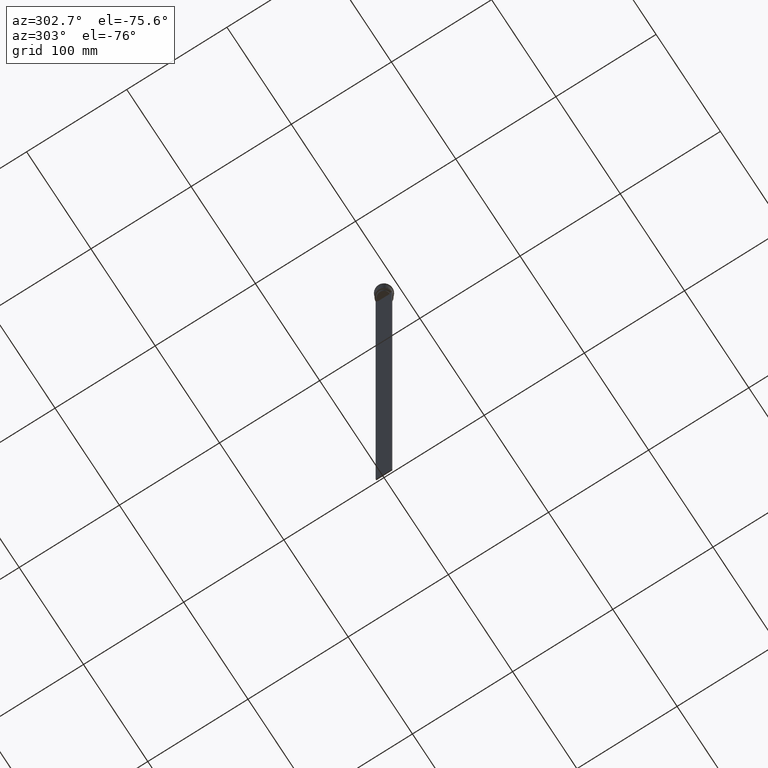
[diagram: clean part render]
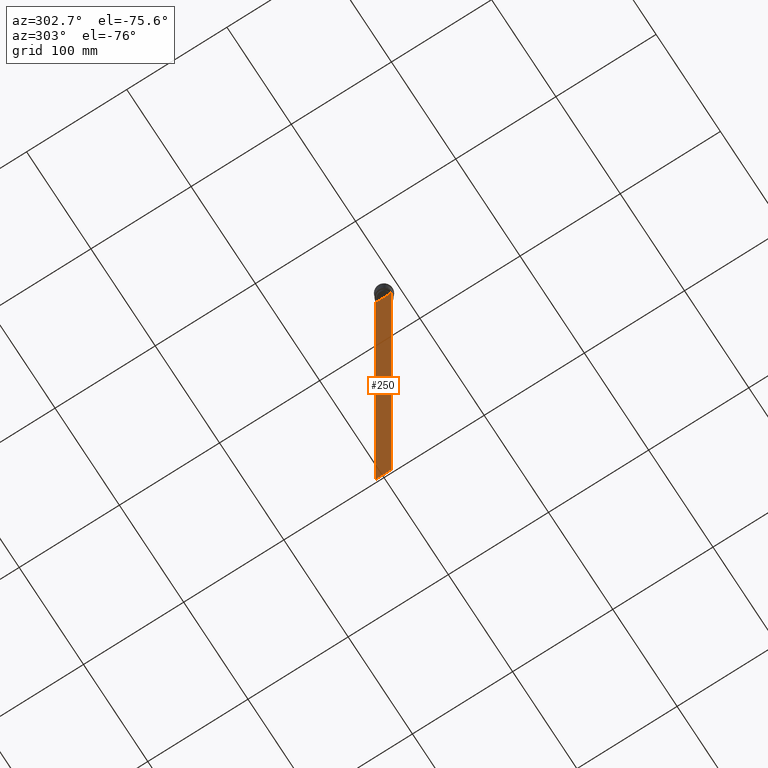
[diagram: same view with one face highlighted and labeled with its STEP entity id]
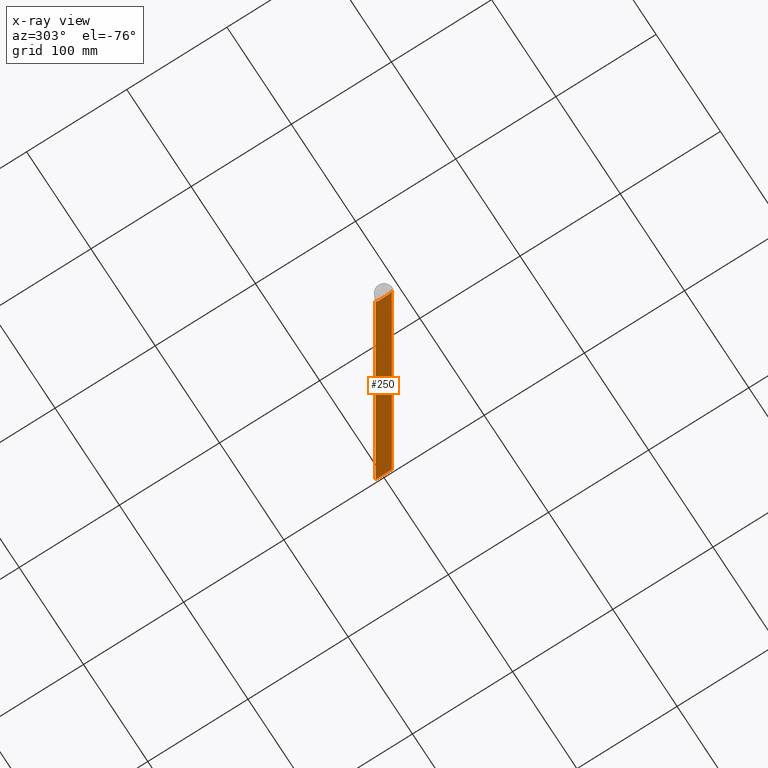
[diagram: x-ray of the same camera — body ghosted, the highlighted face saturated]
A machine part, auxiliary view. The second image highlights one B-rep face of the part: STEP entity #250.
The next image is the same camera in x-ray: the body ghosted, the highlighted face saturated — about 0% of this face is hidden behind the body in this view.
In plain terms, the highlighted planar face has unit normal (-1, 0, 0).
Its self-contained STEP definition (entity closure, byte-faithful):
#2 = LINE ( 'NONE', #1508, #50 ) ;
#4 = CARTESIAN_POINT ( 'NONE',  ( -0.4999999999999998890, -6.380438856379708312, 0.000000000000000000 ) ) ;
#12 = CARTESIAN_POINT ( 'NONE',  ( -0.4999999999999998890, 6.380438856379708312, -14.50000000000000000 ) ) ;
#22 = ORIENTED_EDGE ( 'NONE', *, *, #1027, .F. ) ;
#32 = VERTEX_POINT ( 'NONE', #2423 ) ;
#36 = CARTESIAN_POINT ( 'NONE',  ( -0.4999999999999998890, 6.881860213634098500, -14.00000000000000178 ) ) ;
#44 = ORIENTED_EDGE ( 'NONE', *, *, #52, .F. ) ;
#50 = VECTOR ( 'NONE', #1329, 1000.000000000000000 ) ;
#52 = EDGE_CURVE ( 'NONE', #1179, #1962, #2426, .T. ) ;
#78 = VECTOR ( 'NONE', #1378, 1000.000000000000000 ) ;
#98 = CARTESIAN_POINT ( 'NONE',  ( -0.4999999999999998890, -6.380438856379708312, -14.50000000000000000 ) ) ;
#106 = CARTESIAN_POINT ( 'NONE',  ( -0.4999999999999998890, -8.000000000000003553, -14.00000000000000178 ) ) ;
#160 = CARTESIAN_POINT ( 'NONE',  ( -0.4999999999999998890, 7.884161337770806632, -14.00000000000000178 ) ) ;
#201 = CARTESIAN_POINT ( 'NONE',  ( -0.4999999999999998890, -8.000000000000003553, 2.031219541881394530 ) ) ;
#250 = ADVANCED_FACE ( 'NONE', ( #916 ), #1876, .T. ) ;
#251 = CARTESIAN_POINT ( 'NONE',  ( -0.4999999999999998890, 7.999999999999996447, -14.00000000000000178 ) ) ;
#284 = CARTESIAN_POINT ( 'NONE',  ( -0.4999999999999998890, 6.380438856379708312, -14.50000000000000000 ) ) ;
#334 = DIRECTION ( 'NONE',  ( 0.000000000000000000, -1.000000000000000000, 0.000000000000000000 ) ) ;
#362 = B_SPLINE_CURVE_WITH_KNOTS ( 'NONE', 3,
 ( #98, #2217, #2393, #1650 ),
 .UNSPECIFIED., .F., .F.,
 ( 4, 4 ),
 ( 0.02996184199614749730, 0.03067452609193703841 ),
 .UNSPECIFIED. ) ;
#461 = ORIENTED_EDGE ( 'NONE', *, *, #2455, .F. ) ;
#469 = EDGE_CURVE ( 'NONE', #482, #2208, #1801, .T. ) ;
#482 = VERTEX_POINT ( 'NONE', #251 ) ;
#526 = DIRECTION ( 'NONE',  ( -1.000000000000000000, 0.000000000000000000, 0.000000000000000000 ) ) ;
#528 = LINE ( 'NONE', #1255, #569 ) ;
#543 = CARTESIAN_POINT ( 'NONE',  ( -0.4999999999999998890, -8.000000000000003553, -614.0000000000000000 ) ) ;
#567 = CARTESIAN_POINT ( 'NONE',  ( -0.4999999999999998890, 6.547597841304911626, -14.33335192459222718 ) ) ;
#569 = VECTOR ( 'NONE', #2464, 1000.000000000000000 ) ;
#605 = VECTOR ( 'NONE', #2229, 1000.000000000000000 ) ;
#687 = EDGE_CURVE ( 'NONE', #1138, #1179, #888, .T. ) ;
#703 = VERTEX_POINT ( 'NONE', #1653 ) ;
#719 = CARTESIAN_POINT ( 'NONE',  ( -0.4999999999999998890, -8.000000000000003553, -14.00000000000000178 ) ) ;
#724 = EDGE_CURVE ( 'NONE', #947, #1483, #1498, .T. ) ;
#760 = CARTESIAN_POINT ( 'NONE',  ( -0.4999999999999998890, 6.881860213634098500, -14.00000000000000178 ) ) ;
#763 = EDGE_CURVE ( 'NONE', #1962, #32, #2, .T. ) ;
#784 = CARTESIAN_POINT ( 'NONE',  ( -0.4999999999999998890, 6.399999999999999467, -17.00000000000000000 ) ) ;
#786 = VERTEX_POINT ( 'NONE', #2257 ) ;
#814 = ORIENTED_EDGE ( 'NONE', *, *, #1215, .F. ) ;
#832 = ORIENTED_EDGE ( 'NONE', *, *, #687, .F. ) ;
#888 = LINE ( 'NONE', #2019, #605 ) ;
#908 = ORIENTED_EDGE ( 'NONE', *, *, #1394, .F. ) ;
#916 = FACE_OUTER_BOUND ( 'NONE', #2430, .T. ) ;
#947 = VERTEX_POINT ( 'NONE', #1799 ) ;
#963 = AXIS2_PLACEMENT_3D ( 'NONE', #1501, #526, #1643 ) ;
#965 = ORIENTED_EDGE ( 'NONE', *, *, #763, .F. ) ;
#996 = DIRECTION ( 'NONE',  ( 0.000000000000000000, -1.000000000000000000, 0.000000000000000000 ) ) ;
#1010 = VECTOR ( 'NONE', #2029, 1000.000000000000000 ) ;
#1014 = DIRECTION ( 'NONE',  ( 0.000000000000000000, 0.000000000000000000, -1.000000000000000000 ) ) ;
#1018 = ORIENTED_EDGE ( 'NONE', *, *, #2351, .F. ) ;
#1027 = EDGE_CURVE ( 'NONE', #2271, #1565, #362, .T. ) ;
#1047 = CARTESIAN_POINT ( 'NONE',  ( -0.4999999999999998890, 7.999999999999996447, -614.0000000000000000 ) ) ;
#1138 = VERTEX_POINT ( 'NONE', #160 ) ;
#1179 = VERTEX_POINT ( 'NONE', #36 ) ;
#1203 = ORIENTED_EDGE ( 'NONE', *, *, #2299, .F. ) ;
#1215 = EDGE_CURVE ( 'NONE', #32, #703, #1796, .T. ) ;
#1255 = CARTESIAN_POINT ( 'NONE',  ( -0.4999999999999998890, -8.000000000000003553, -14.00000000000000178 ) ) ;
#1265 = CARTESIAN_POINT ( 'NONE',  ( -0.4999999999999998890, -6.380438856379708312, -14.50000000000000000 ) ) ;
#1313 = CARTESIAN_POINT ( 'NONE',  ( -0.4999999999999998890, -6.881860213634098500, -14.00000000000000178 ) ) ;
#1329 = DIRECTION ( 'NONE',  ( 0.000000000000000000, 0.000000000000000000, -1.000000000000000000 ) ) ;
#1332 = LINE ( 'NONE', #4, #1010 ) ;
#1378 = DIRECTION ( 'NONE',  ( 0.000000000000000000, 1.000000000000000000, 0.000000000000000000 ) ) ;
#1394 = EDGE_CURVE ( 'NONE', #482, #1138, #1659, .T. ) ;
#1483 = VERTEX_POINT ( 'NONE', #543 ) ;
#1498 = LINE ( 'NONE', #201, #1741 ) ;
#1501 = CARTESIAN_POINT ( 'NONE',  ( -0.4999999999999998890, -8.000000000000003553, 2.031219541881394530 ) ) ;
#1508 = CARTESIAN_POINT ( 'NONE',  ( -0.4999999999999998890, 6.380438856379708312, 0.000000000000000000 ) ) ;
#1519 = DIRECTION ( 'NONE',  ( 0.000000000000000000, 0.000000000000000000, -1.000000000000000000 ) ) ;
#1553 = CARTESIAN_POINT ( 'NONE',  ( -0.4999999999999998890, -8.000000000000003553, -614.0000000000000000 ) ) ;
#1565 = VERTEX_POINT ( 'NONE', #1313 ) ;
#1643 = DIRECTION ( 'NONE',  ( 0.000000000000000000, 0.000000000000000000, 1.000000000000000000 ) ) ;
#1650 = CARTESIAN_POINT ( 'NONE',  ( -0.4999999999999998890, -6.881860213634098500, -14.00000000000000178 ) ) ;
#1653 = CARTESIAN_POINT ( 'NONE',  ( -0.4999999999999998890, -6.380438856379708312, -17.00000000000000000 ) ) ;
#1659 = LINE ( 'NONE', #106, #1805 ) ;
#1683 = ORIENTED_EDGE ( 'NONE', *, *, #469, .T. ) ;
#1687 = LINE ( 'NONE', #719, #2395 ) ;
#1741 = VECTOR ( 'NONE', #1519, 1000.000000000000000 ) ;
#1746 = LINE ( 'NONE', #1553, #78 ) ;
#1796 = LINE ( 'NONE', #784, #1844 ) ;
#1799 = CARTESIAN_POINT ( 'NONE',  ( -0.4999999999999998890, -8.000000000000003553, -14.00000000000000178 ) ) ;
#1801 = LINE ( 'NONE', #1991, #2409 ) ;
#1805 = VECTOR ( 'NONE', #334, 1000.000000000000000 ) ;
#1844 = VECTOR ( 'NONE', #996, 1000.000000000000000 ) ;
#1876 = PLANE ( 'NONE',  #963 ) ;
#1962 = VERTEX_POINT ( 'NONE', #284 ) ;
#1991 = CARTESIAN_POINT ( 'NONE',  ( -0.4999999999999998890, 7.999999999999996447, 2.031219541881394530 ) ) ;
#2019 = CARTESIAN_POINT ( 'NONE',  ( -0.4999999999999998890, -8.000000000000003553, -14.00000000000000178 ) ) ;
#2029 = DIRECTION ( 'NONE',  ( -0.000000000000000000, -0.000000000000000000, 1.000000000000000000 ) ) ;
#2033 = ORIENTED_EDGE ( 'NONE', *, *, #724, .F. ) ;
#2059 = DIRECTION ( 'NONE',  ( 0.000000000000000000, -1.000000000000000000, 0.000000000000000000 ) ) ;
#2073 = CARTESIAN_POINT ( 'NONE',  ( -0.4999999999999998890, 6.714736947114692711, -14.16668390704818847 ) ) ;
#2087 = EDGE_CURVE ( 'NONE', #703, #2271, #1332, .T. ) ;
#2208 = VERTEX_POINT ( 'NONE', #1047 ) ;
#2217 = CARTESIAN_POINT ( 'NONE',  ( -0.4999999999999998890, -6.547597841511246131, -14.33335192438652328 ) ) ;
#2229 = DIRECTION ( 'NONE',  ( 0.000000000000000000, -1.000000000000000000, 0.000000000000000000 ) ) ;
#2247 = ORIENTED_EDGE ( 'NONE', *, *, #2087, .F. ) ;
#2257 = CARTESIAN_POINT ( 'NONE',  ( -0.4999999999999998890, -7.884161337770806632, -14.00000000000000178 ) ) ;
#2271 = VERTEX_POINT ( 'NONE', #1265 ) ;
#2299 = EDGE_CURVE ( 'NONE', #1565, #786, #528, .T. ) ;
#2351 = EDGE_CURVE ( 'NONE', #786, #947, #1687, .T. ) ;
#2393 = CARTESIAN_POINT ( 'NONE',  ( -0.4999999999999998890, -6.714736947305992132, -14.16668390685738999 ) ) ;
#2395 = VECTOR ( 'NONE', #2059, 1000.000000000000000 ) ;
#2409 = VECTOR ( 'NONE', #1014, 1000.000000000000000 ) ;
#2423 = CARTESIAN_POINT ( 'NONE',  ( -0.4999999999999998890, 6.380438856379708312, -17.00000000000000000 ) ) ;
#2426 = B_SPLINE_CURVE_WITH_KNOTS ( 'NONE', 3,
 ( #760, #2073, #567, #12 ),
 .UNSPECIFIED., .F., .F.,
 ( 4, 4 ),
 ( 0.01172465562756038263, 0.01243276816391822651 ),
 .UNSPECIFIED. ) ;
#2430 = EDGE_LOOP ( 'NONE', ( #44, #832, #908, #1683, #461, #2033, #1018, #1203, #22, #2247, #814, #965 ) ) ;
#2455 = EDGE_CURVE ( 'NONE', #1483, #2208, #1746, .T. ) ;
#2464 = DIRECTION ( 'NONE',  ( 0.000000000000000000, -1.000000000000000000, 0.000000000000000000 ) ) ;